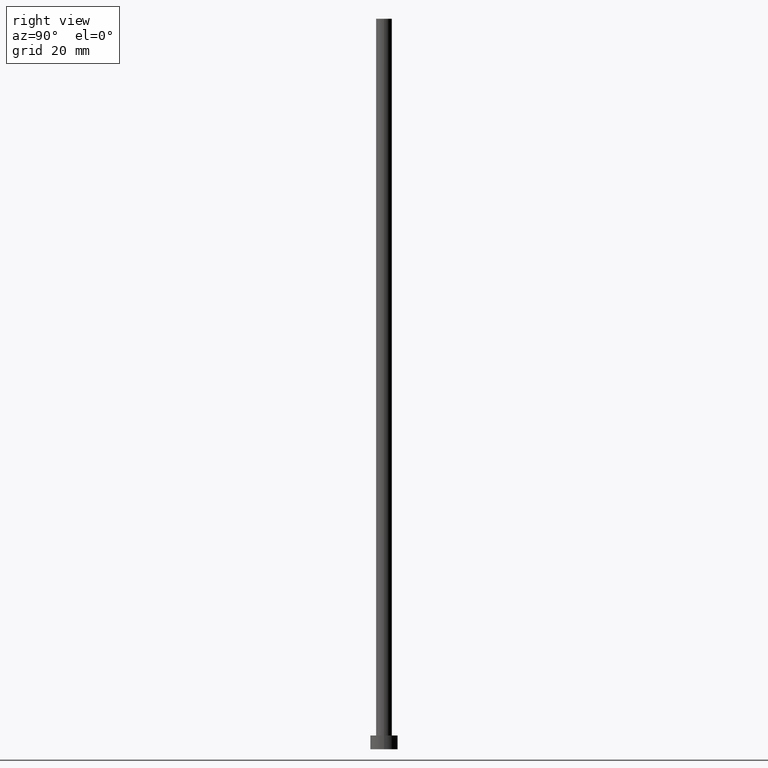
[diagram: clean part render]
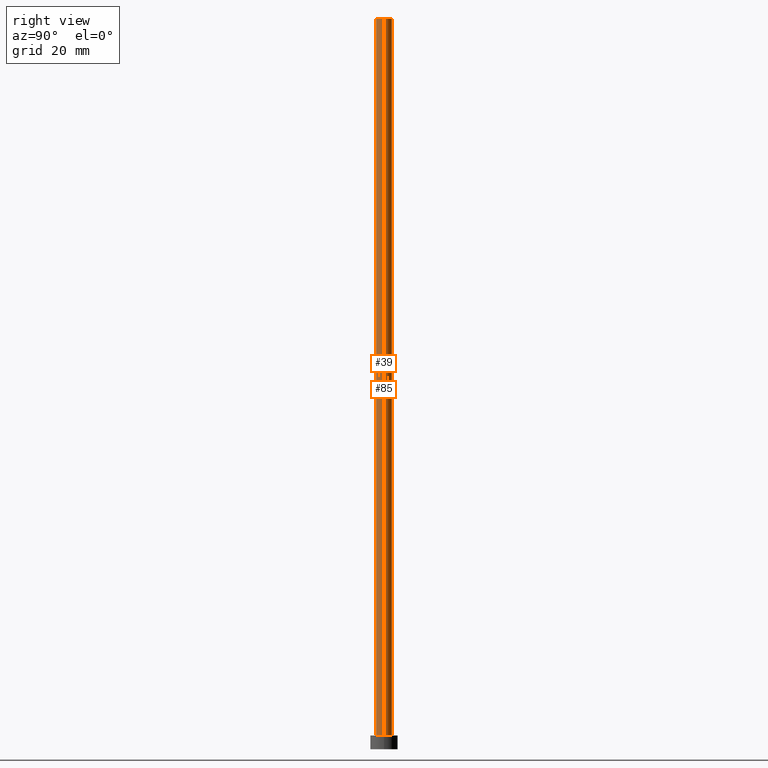
[diagram: same view with one multi-face feature highlighted, each face labeled with its STEP entity id]
A machine part, right view. The highlighted faces form ONE feature: a constant-radius fillet chain: 2 tangent blend faces with common blend radius 1.75 mm. The faces share edges in the B-rep.
Their STEP definitions:
[1] entity #85 (Cylinder):
#2 = DIRECTION ( 'NONE',  ( -0.000000000000000000, -0.000000000000000000, -1.000000000000000000 ) ) ;
#4 = CARTESIAN_POINT ( 'NONE',  ( -1.750000000000000000, 0.000000000000000000, 160.0000000000000000 ) ) ;
#13 = EDGE_CURVE ( 'NONE', #179, #231, #34, .T. ) ;
#16 = DIRECTION ( 'NONE',  ( -1.000000000000000000, 0.000000000000000000, 0.000000000000000000 ) ) ;
#18 = CARTESIAN_POINT ( 'NONE',  ( 1.750000000000000000, 2.143131898507868297E-16, 160.0000000000000000 ) ) ;
#22 = DIRECTION ( 'NONE',  ( 0.000000000000000000, 0.000000000000000000, 1.000000000000000000 ) ) ;
#23 = EDGE_CURVE ( 'NONE', #179, #252, #132, .T. ) ;
#25 = AXIS2_PLACEMENT_3D ( 'NONE', #228, #22, #47 ) ;
#29 = EDGE_LOOP ( 'NONE', ( #40, #254, #187, #77 ) ) ;
#34 = LINE ( 'NONE', #18, #109 ) ;
#38 = DIRECTION ( 'NONE',  ( 1.000000000000000000, 0.000000000000000000, 0.000000000000000000 ) ) ;
#40 = ORIENTED_EDGE ( 'NONE', *, *, #23, .F. ) ;
#45 = AXIS2_PLACEMENT_3D ( 'NONE', #214, #199, #16 ) ;
#47 = DIRECTION ( 'NONE',  ( 1.000000000000000000, 0.000000000000000000, 0.000000000000000000 ) ) ;
#57 = CARTESIAN_POINT ( 'NONE',  ( 0.000000000000000000, 0.000000000000000000, 160.0000000000000000 ) ) ;
#67 = CARTESIAN_POINT ( 'NONE',  ( 1.750000000000000000, 2.143131898507868297E-16, 160.0000000000000000 ) ) ;
#77 = ORIENTED_EDGE ( 'NONE', *, *, #107, .F. ) ;
#80 = CIRCLE ( 'NONE', #25, 1.750000000000000000 ) ;
#84 = LINE ( 'NONE', #106, #226 ) ;
#85 = ADVANCED_FACE ( 'NONE', ( #220 ), #235, .T. ) ;
#95 = VERTEX_POINT ( 'NONE', #182 ) ;
#106 = CARTESIAN_POINT ( 'NONE',  ( -1.750000000000000000, 0.000000000000000000, 160.0000000000000000 ) ) ;
#107 = EDGE_CURVE ( 'NONE', #252, #95, #84, .T. ) ;
#109 = VECTOR ( 'NONE', #138, 1000.000000000000000 ) ;
#129 = AXIS2_PLACEMENT_3D ( 'NONE', #57, #157, #38 ) ;
#132 = CIRCLE ( 'NONE', #129, 1.750000000000000000 ) ;
#138 = DIRECTION ( 'NONE',  ( -0.000000000000000000, -0.000000000000000000, -1.000000000000000000 ) ) ;
#157 = DIRECTION ( 'NONE',  ( 0.000000000000000000, 0.000000000000000000, 1.000000000000000000 ) ) ;
#179 = VERTEX_POINT ( 'NONE', #67 ) ;
#182 = CARTESIAN_POINT ( 'NONE',  ( -1.750000000000000000, 0.000000000000000000, 3.000000000000000000 ) ) ;
#184 = CARTESIAN_POINT ( 'NONE',  ( 1.750000000000000000, 2.143131898507868297E-16, 3.000000000000000000 ) ) ;
#187 = ORIENTED_EDGE ( 'NONE', *, *, #244, .T. ) ;
#199 = DIRECTION ( 'NONE',  ( -0.000000000000000000, -0.000000000000000000, -1.000000000000000000 ) ) ;
#214 = CARTESIAN_POINT ( 'NONE',  ( 0.000000000000000000, 0.000000000000000000, 160.0000000000000000 ) ) ;
#220 = FACE_OUTER_BOUND ( 'NONE', #29, .T. ) ;
#226 = VECTOR ( 'NONE', #2, 1000.000000000000000 ) ;
#228 = CARTESIAN_POINT ( 'NONE',  ( 0.000000000000000000, 0.000000000000000000, 3.000000000000000000 ) ) ;
#231 = VERTEX_POINT ( 'NONE', #184 ) ;
#235 = CYLINDRICAL_SURFACE ( 'NONE', #45, 1.750000000000000000 ) ;
#244 = EDGE_CURVE ( 'NONE', #231, #95, #80, .T. ) ;
#252 = VERTEX_POINT ( 'NONE', #4 ) ;
#254 = ORIENTED_EDGE ( 'NONE', *, *, #13, .T. ) ;
[2] entity #39 (Cylinder):
#2 = DIRECTION ( 'NONE',  ( -0.000000000000000000, -0.000000000000000000, -1.000000000000000000 ) ) ;
#4 = CARTESIAN_POINT ( 'NONE',  ( -1.750000000000000000, 0.000000000000000000, 160.0000000000000000 ) ) ;
#13 = EDGE_CURVE ( 'NONE', #179, #231, #34, .T. ) ;
#18 = CARTESIAN_POINT ( 'NONE',  ( 1.750000000000000000, 2.143131898507868297E-16, 160.0000000000000000 ) ) ;
#33 = EDGE_CURVE ( 'NONE', #252, #179, #86, .T. ) ;
#34 = LINE ( 'NONE', #18, #109 ) ;
#39 = ADVANCED_FACE ( 'NONE', ( #237 ), #236, .T. ) ;
#49 = AXIS2_PLACEMENT_3D ( 'NONE', #81, #221, #200 ) ;
#67 = CARTESIAN_POINT ( 'NONE',  ( 1.750000000000000000, 2.143131898507868297E-16, 160.0000000000000000 ) ) ;
#81 = CARTESIAN_POINT ( 'NONE',  ( 0.000000000000000000, 0.000000000000000000, 160.0000000000000000 ) ) ;
#82 = DIRECTION ( 'NONE',  ( -0.000000000000000000, -0.000000000000000000, -1.000000000000000000 ) ) ;
#83 = DIRECTION ( 'NONE',  ( 0.000000000000000000, 0.000000000000000000, 1.000000000000000000 ) ) ;
#84 = LINE ( 'NONE', #106, #226 ) ;
#86 = CIRCLE ( 'NONE', #49, 1.750000000000000000 ) ;
#95 = VERTEX_POINT ( 'NONE', #182 ) ;
#97 = CIRCLE ( 'NONE', #223, 1.750000000000000000 ) ;
#102 = ORIENTED_EDGE ( 'NONE', *, *, #148, .T. ) ;
#106 = CARTESIAN_POINT ( 'NONE',  ( -1.750000000000000000, 0.000000000000000000, 160.0000000000000000 ) ) ;
#107 = EDGE_CURVE ( 'NONE', #252, #95, #84, .T. ) ;
#109 = VECTOR ( 'NONE', #138, 1000.000000000000000 ) ;
#116 = EDGE_LOOP ( 'NONE', ( #141, #248, #251, #102 ) ) ;
#124 = DIRECTION ( 'NONE',  ( 1.000000000000000000, 0.000000000000000000, 0.000000000000000000 ) ) ;
#138 = DIRECTION ( 'NONE',  ( -0.000000000000000000, -0.000000000000000000, -1.000000000000000000 ) ) ;
#141 = ORIENTED_EDGE ( 'NONE', *, *, #13, .F. ) ;
#143 = AXIS2_PLACEMENT_3D ( 'NONE', #178, #82, #162 ) ;
#148 = EDGE_CURVE ( 'NONE', #95, #231, #97, .T. ) ;
#162 = DIRECTION ( 'NONE',  ( -1.000000000000000000, 0.000000000000000000, 0.000000000000000000 ) ) ;
#178 = CARTESIAN_POINT ( 'NONE',  ( 0.000000000000000000, 0.000000000000000000, 160.0000000000000000 ) ) ;
#179 = VERTEX_POINT ( 'NONE', #67 ) ;
#182 = CARTESIAN_POINT ( 'NONE',  ( -1.750000000000000000, 0.000000000000000000, 3.000000000000000000 ) ) ;
#184 = CARTESIAN_POINT ( 'NONE',  ( 1.750000000000000000, 2.143131898507868297E-16, 3.000000000000000000 ) ) ;
#200 = DIRECTION ( 'NONE',  ( 1.000000000000000000, 0.000000000000000000, 0.000000000000000000 ) ) ;
#221 = DIRECTION ( 'NONE',  ( 0.000000000000000000, 0.000000000000000000, 1.000000000000000000 ) ) ;
#223 = AXIS2_PLACEMENT_3D ( 'NONE', #241, #83, #124 ) ;
#226 = VECTOR ( 'NONE', #2, 1000.000000000000000 ) ;
#231 = VERTEX_POINT ( 'NONE', #184 ) ;
#236 = CYLINDRICAL_SURFACE ( 'NONE', #143, 1.750000000000000000 ) ;
#237 = FACE_OUTER_BOUND ( 'NONE', #116, .T. ) ;
#241 = CARTESIAN_POINT ( 'NONE',  ( 0.000000000000000000, 0.000000000000000000, 3.000000000000000000 ) ) ;
#248 = ORIENTED_EDGE ( 'NONE', *, *, #33, .F. ) ;
#251 = ORIENTED_EDGE ( 'NONE', *, *, #107, .T. ) ;
#252 = VERTEX_POINT ( 'NONE', #4 ) ;